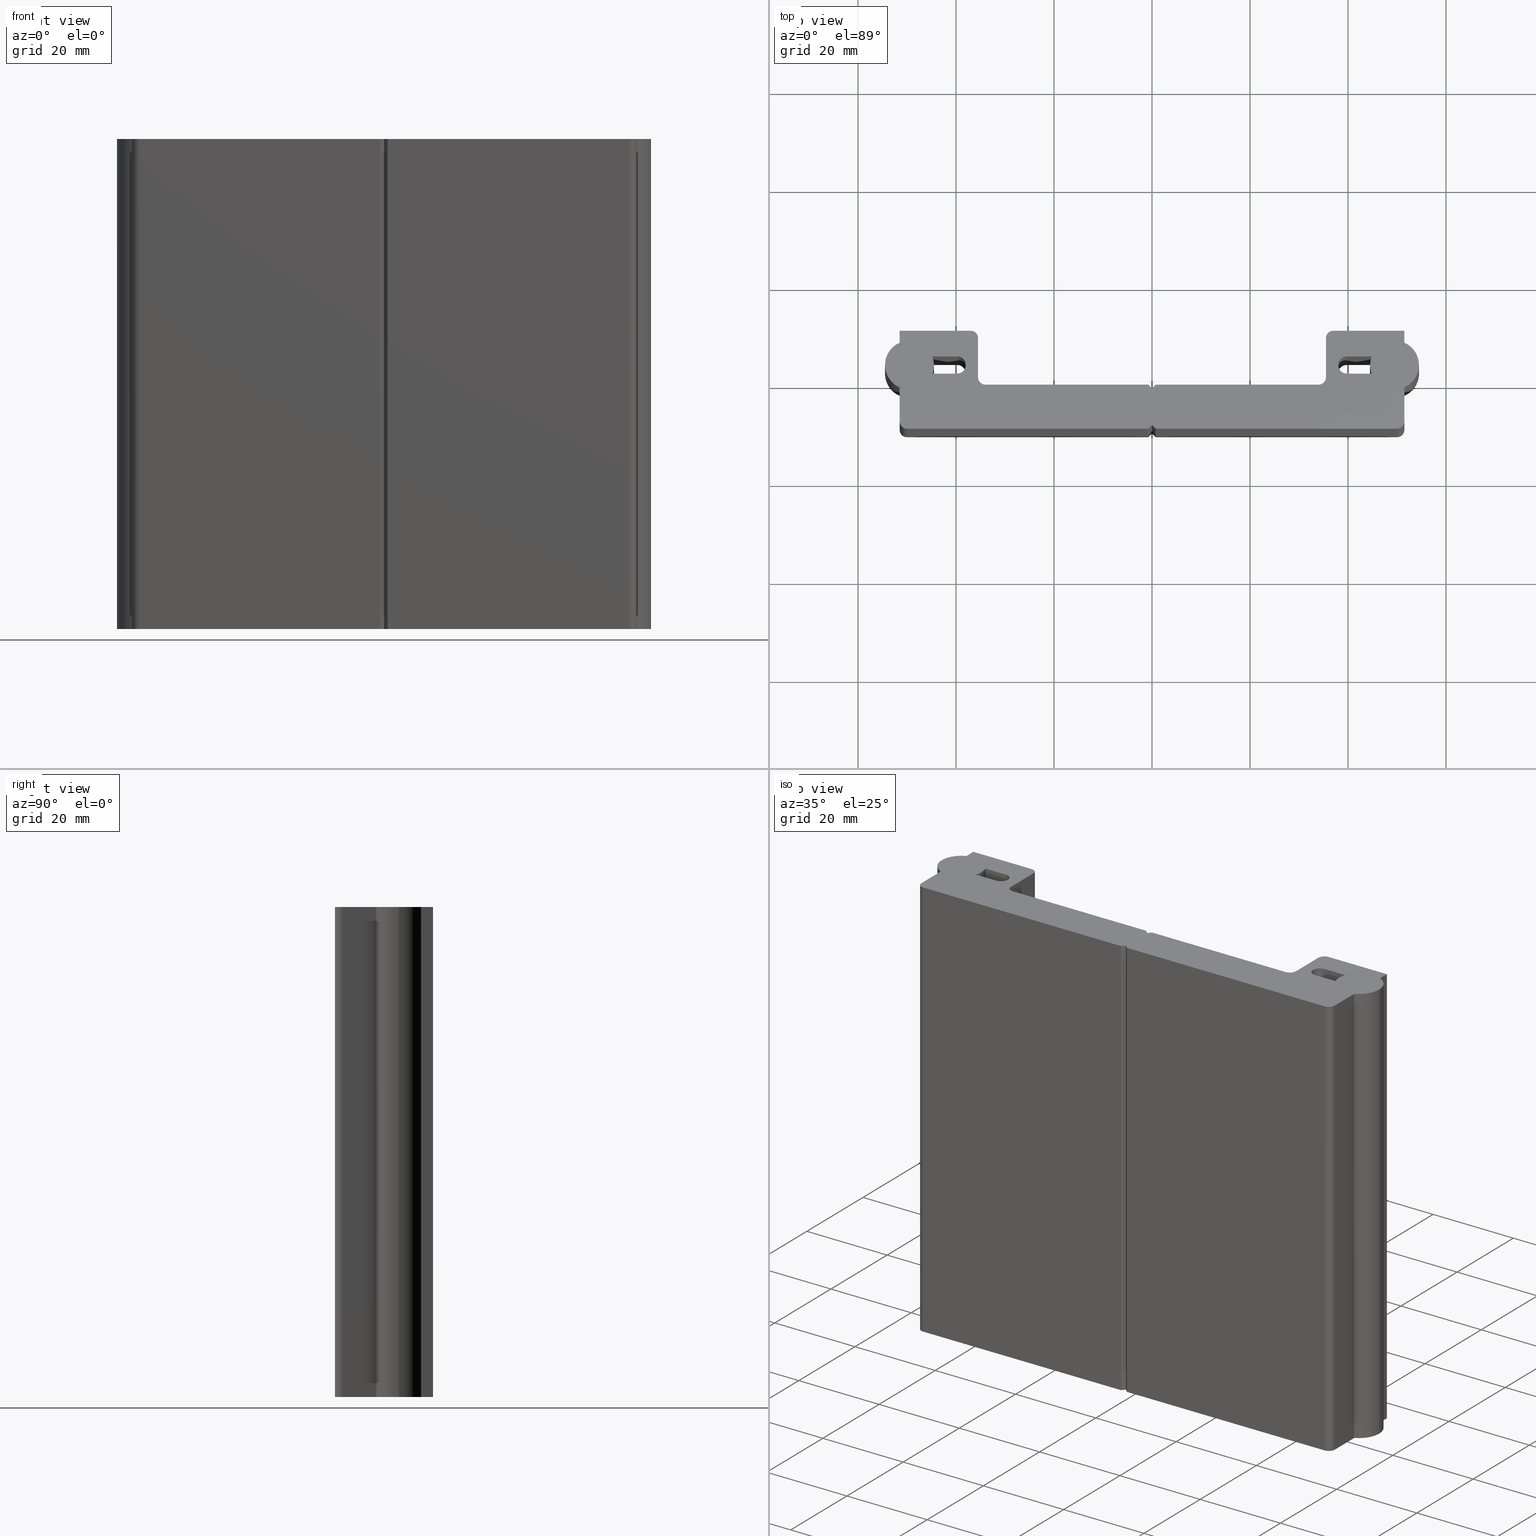
[diagram: canonical four-view strip — front | top / right | iso, engineering-drawing reading convention]
A machine part, canonical four-view strip (front | top / right | iso — engineering-drawing reading convention). The complete STEP part file that produces these views, byte-faithful:
ISO-10303-21;
HEADER;
/* Generated by software containing ST-Developer
 * from STEP Tools, Inc. (www.steptools.com) 
 */

FILE_DESCRIPTION(
/* description */ ('PROFILO GUIDA LINEARE GDX10'),
/* implementation_level */ '2;1');

FILE_NAME(
/* name */ 
'C:\\Users\\tecnico7\\Desktop\\NUOVI DISEGNI 3D\\F3DTM0000606.stp',
/* time_stamp */ '2022-12-12T09:51:14+01:00',
/* author */ ('tecnico7'),
/* organization */ (''),
/* preprocessor_version */ 'ST-DEVELOPER v18.1',
/* originating_system */ 'Autodesk Inventor 2022',
/* authorisation */ '');

FILE_SCHEMA (('AUTOMOTIVE_DESIGN { 1 0 10303 214 3 1 1 }'));
ENDSEC;

DATA;
#10=MECHANICAL_DESIGN_GEOMETRIC_PRESENTATION_REPRESENTATION('',(#27,#28),
#1255);
#11=ITEM_DEFINED_TRANSFORMATION($,$,#761,#826);
#12=ITEM_DEFINED_TRANSFORMATION($,$,#761,#827);
#13=ITEM_DEFINED_TRANSFORMATION($,$,#767,#828);
#14=(
REPRESENTATION_RELATIONSHIP($,$,#1270,#1269)
REPRESENTATION_RELATIONSHIP_WITH_TRANSFORMATION(#11)
SHAPE_REPRESENTATION_RELATIONSHIP()
);
#15=(
REPRESENTATION_RELATIONSHIP($,$,#1270,#1269)
REPRESENTATION_RELATIONSHIP_WITH_TRANSFORMATION(#12)
SHAPE_REPRESENTATION_RELATIONSHIP()
);
#16=(
REPRESENTATION_RELATIONSHIP($,$,#1271,#1269)
REPRESENTATION_RELATIONSHIP_WITH_TRANSFORMATION(#13)
SHAPE_REPRESENTATION_RELATIONSHIP()
);
#17=CONTEXT_DEPENDENT_SHAPE_REPRESENTATION(#14,#1266);
#18=CONTEXT_DEPENDENT_SHAPE_REPRESENTATION(#15,#1267);
#19=CONTEXT_DEPENDENT_SHAPE_REPRESENTATION(#16,#1268);
#20=NEXT_ASSEMBLY_USAGE_OCCURRENCE('3DSD000933:1','3DSD000933:1',
'3DSD000933:1',#1273,#1274,'3DSD000933:1');
#21=NEXT_ASSEMBLY_USAGE_OCCURRENCE('3DSD000933:2','3DSD000933:2',
'3DSD000933:2',#1273,#1274,'3DSD000933:2');
#22=NEXT_ASSEMBLY_USAGE_OCCURRENCE('3DSD000934:1','3DSD000934:1',
'3DSD000934:1',#1273,#1275,'3DSD000934:1');
#23=SHAPE_REPRESENTATION_RELATIONSHIP('SRR','None',#1270,#25);
#24=SHAPE_REPRESENTATION_RELATIONSHIP('SRR','None',#1271,#26);
#25=ADVANCED_BREP_SHAPE_REPRESENTATION('',(#29),#1253);
#26=ADVANCED_BREP_SHAPE_REPRESENTATION('',(#30),#1254);
#27=STYLED_ITEM('',(#1289),#29);
#28=STYLED_ITEM('',(#1290),#30);
#29=MANIFOLD_SOLID_BREP('Solido1',#714);
#30=MANIFOLD_SOLID_BREP('Solido1',#715);
#31=PLANE('',#765);
#32=PLANE('',#766);
#33=PLANE('',#768);
#34=PLANE('',#769);
#35=PLANE('',#773);
#36=PLANE('',#774);
#37=PLANE('',#790);
#38=PLANE('',#799);
#39=PLANE('',#800);
#40=PLANE('',#807);
#41=PLANE('',#809);
#42=PLANE('',#811);
#43=PLANE('',#814);
#44=PLANE('',#815);
#45=PLANE('',#816);
#46=PLANE('',#817);
#47=PLANE('',#818);
#48=PLANE('',#819);
#49=PLANE('',#820);
#50=PLANE('',#821);
#51=PLANE('',#822);
#52=PLANE('',#823);
#53=PLANE('',#824);
#54=PLANE('',#825);
#55=FACE_OUTER_BOUND('',#92,.T.);
#56=FACE_OUTER_BOUND('',#93,.T.);
#57=FACE_OUTER_BOUND('',#94,.T.);
#58=FACE_OUTER_BOUND('',#95,.T.);
#59=FACE_OUTER_BOUND('',#96,.T.);
#60=FACE_OUTER_BOUND('',#97,.T.);
#61=FACE_OUTER_BOUND('',#98,.T.);
#62=FACE_OUTER_BOUND('',#99,.T.);
#63=FACE_OUTER_BOUND('',#100,.T.);
#64=FACE_OUTER_BOUND('',#101,.T.);
#65=FACE_OUTER_BOUND('',#102,.T.);
#66=FACE_OUTER_BOUND('',#103,.T.);
#67=FACE_OUTER_BOUND('',#104,.T.);
#68=FACE_OUTER_BOUND('',#105,.T.);
#69=FACE_OUTER_BOUND('',#106,.T.);
#70=FACE_OUTER_BOUND('',#107,.T.);
#71=FACE_OUTER_BOUND('',#108,.T.);
#72=FACE_OUTER_BOUND('',#109,.T.);
#73=FACE_OUTER_BOUND('',#110,.T.);
#74=FACE_OUTER_BOUND('',#111,.T.);
#75=FACE_OUTER_BOUND('',#112,.T.);
#76=FACE_OUTER_BOUND('',#113,.T.);
#77=FACE_OUTER_BOUND('',#114,.T.);
#78=FACE_OUTER_BOUND('',#115,.T.);
#79=FACE_OUTER_BOUND('',#116,.T.);
#80=FACE_OUTER_BOUND('',#117,.T.);
#81=FACE_OUTER_BOUND('',#118,.T.);
#82=FACE_OUTER_BOUND('',#119,.T.);
#83=FACE_OUTER_BOUND('',#120,.T.);
#84=FACE_OUTER_BOUND('',#121,.T.);
#85=FACE_OUTER_BOUND('',#122,.T.);
#86=FACE_OUTER_BOUND('',#123,.T.);
#87=FACE_OUTER_BOUND('',#124,.T.);
#88=FACE_OUTER_BOUND('',#125,.T.);
#89=FACE_OUTER_BOUND('',#126,.T.);
#90=FACE_OUTER_BOUND('',#127,.T.);
#91=FACE_OUTER_BOUND('',#128,.T.);
#92=EDGE_LOOP('',(#466,#467,#468,#469));
#93=EDGE_LOOP('',(#470));
#94=EDGE_LOOP('',(#471));
#95=EDGE_LOOP('',(#472,#473,#474,#475));
#96=EDGE_LOOP('',(#476,#477,#478,#479));
#97=EDGE_LOOP('',(#480,#481,#482,#483));
#98=EDGE_LOOP('',(#484,#485,#486,#487));
#99=EDGE_LOOP('',(#488,#489,#490,#491));
#100=EDGE_LOOP('',(#492,#493,#494,#495));
#101=EDGE_LOOP('',(#496,#497,#498,#499));
#102=EDGE_LOOP('',(#500,#501,#502,#503));
#103=EDGE_LOOP('',(#504,#505,#506,#507));
#104=EDGE_LOOP('',(#508,#509,#510,#511));
#105=EDGE_LOOP('',(#512,#513,#514,#515,#516,#517,#518,#519,#520,#521,#522,
#523,#524,#525,#526,#527,#528,#529,#530,#531,#532,#533,#534,#535,#536,#537,
#538,#539,#540,#541,#542,#543));
#106=EDGE_LOOP('',(#544,#545,#546,#547));
#107=EDGE_LOOP('',(#548,#549,#550,#551));
#108=EDGE_LOOP('',(#552,#553,#554,#555,#556,#557,#558,#559,#560,#561,#562,
#563,#564,#565,#566,#567,#568,#569,#570,#571,#572,#573,#574,#575,#576,#577,
#578,#579,#580,#581,#582,#583));
#109=EDGE_LOOP('',(#584,#585,#586,#587));
#110=EDGE_LOOP('',(#588,#589,#590,#591));
#111=EDGE_LOOP('',(#592,#593,#594,#595));
#112=EDGE_LOOP('',(#596,#597,#598,#599));
#113=EDGE_LOOP('',(#600,#601,#602,#603));
#114=EDGE_LOOP('',(#604,#605,#606,#607));
#115=EDGE_LOOP('',(#608,#609,#610,#611));
#116=EDGE_LOOP('',(#612,#613,#614,#615));
#117=EDGE_LOOP('',(#616,#617,#618,#619));
#118=EDGE_LOOP('',(#620,#621,#622,#623));
#119=EDGE_LOOP('',(#624,#625,#626,#627));
#120=EDGE_LOOP('',(#628,#629,#630,#631));
#121=EDGE_LOOP('',(#632,#633,#634,#635));
#122=EDGE_LOOP('',(#636,#637,#638,#639));
#123=EDGE_LOOP('',(#640,#641,#642,#643));
#124=EDGE_LOOP('',(#644,#645,#646,#647));
#125=EDGE_LOOP('',(#648,#649,#650,#651));
#126=EDGE_LOOP('',(#652,#653,#654,#655));
#127=EDGE_LOOP('',(#656,#657,#658,#659));
#128=EDGE_LOOP('',(#660,#661,#662,#663));
#129=LINE('',#1046,#202);
#130=LINE('',#1054,#203);
#131=LINE('',#1056,#204);
#132=LINE('',#1058,#205);
#133=LINE('',#1059,#206);
#134=LINE('',#1063,#207);
#135=LINE('',#1065,#208);
#136=LINE('',#1067,#209);
#137=LINE('',#1068,#210);
#138=LINE('',#1075,#211);
#139=LINE('',#1077,#212);
#140=LINE('',#1079,#213);
#141=LINE('',#1080,#214);
#142=LINE('',#1084,#215);
#143=LINE('',#1086,#216);
#144=LINE('',#1088,#217);
#145=LINE('',#1089,#218);
#146=LINE('',#1097,#219);
#147=LINE('',#1103,#220);
#148=LINE('',#1109,#221);
#149=LINE('',#1115,#222);
#150=LINE('',#1119,#223);
#151=LINE('',#1121,#224);
#152=LINE('',#1125,#225);
#153=LINE('',#1129,#226);
#154=LINE('',#1131,#227);
#155=LINE('',#1133,#228);
#156=LINE('',#1135,#229);
#157=LINE('',#1139,#230);
#158=LINE('',#1143,#231);
#159=LINE('',#1144,#232);
#160=LINE('',#1146,#233);
#161=LINE('',#1150,#234);
#162=LINE('',#1152,#235);
#163=LINE('',#1154,#236);
#164=LINE('',#1156,#237);
#165=LINE('',#1159,#238);
#166=LINE('',#1162,#239);
#167=LINE('',#1165,#240);
#168=LINE('',#1168,#241);
#169=LINE('',#1169,#242);
#170=LINE('',#1172,#243);
#171=LINE('',#1176,#244);
#172=LINE('',#1178,#245);
#173=LINE('',#1180,#246);
#174=LINE('',#1182,#247);
#175=LINE('',#1185,#248);
#176=LINE('',#1187,#249);
#177=LINE('',#1189,#250);
#178=LINE('',#1193,#251);
#179=LINE('',#1197,#252);
#180=LINE('',#1199,#253);
#181=LINE('',#1201,#254);
#182=LINE('',#1203,#255);
#183=LINE('',#1206,#256);
#184=LINE('',#1207,#257);
#185=LINE('',#1209,#258);
#186=LINE('',#1210,#259);
#187=LINE('',#1212,#260);
#188=LINE('',#1214,#261);
#189=LINE('',#1215,#262);
#190=LINE('',#1218,#263);
#191=LINE('',#1219,#264);
#192=LINE('',#1221,#265);
#193=LINE('',#1223,#266);
#194=LINE('',#1225,#267);
#195=LINE('',#1227,#268);
#196=LINE('',#1229,#269);
#197=LINE('',#1231,#270);
#198=LINE('',#1233,#271);
#199=LINE('',#1234,#272);
#200=LINE('',#1240,#273);
#201=LINE('',#1243,#274);
#202=VECTOR('',#837,5.);
#203=VECTOR('',#848,10.);
#204=VECTOR('',#849,10.);
#205=VECTOR('',#850,10.);
#206=VECTOR('',#851,10.);
#207=VECTOR('',#854,10.);
#208=VECTOR('',#855,10.);
#209=VECTOR('',#856,10.);
#210=VECTOR('',#857,10.);
#211=VECTOR('',#866,10.);
#212=VECTOR('',#867,10.);
#213=VECTOR('',#868,10.);
#214=VECTOR('',#869,10.);
#215=VECTOR('',#872,10.);
#216=VECTOR('',#873,10.);
#217=VECTOR('',#874,10.);
#218=VECTOR('',#875,10.);
#219=VECTOR('',#886,10.);
#220=VECTOR('',#893,10.);
#221=VECTOR('',#900,10.);
#222=VECTOR('',#907,10.);
#223=VECTOR('',#912,10.);
#224=VECTOR('',#913,10.);
#225=VECTOR('',#916,10.);
#226=VECTOR('',#919,10.);
#227=VECTOR('',#920,10.);
#228=VECTOR('',#921,10.);
#229=VECTOR('',#922,10.);
#230=VECTOR('',#925,10.);
#231=VECTOR('',#928,10.);
#232=VECTOR('',#929,10.);
#233=VECTOR('',#930,10.);
#234=VECTOR('',#933,10.);
#235=VECTOR('',#934,10.);
#236=VECTOR('',#935,10.);
#237=VECTOR('',#936,10.);
#238=VECTOR('',#939,10.);
#239=VECTOR('',#942,10.);
#240=VECTOR('',#945,10.);
#241=VECTOR('',#948,10.);
#242=VECTOR('',#949,10.);
#243=VECTOR('',#952,10.);
#244=VECTOR('',#955,10.);
#245=VECTOR('',#956,10.);
#246=VECTOR('',#957,10.);
#247=VECTOR('',#958,10.);
#248=VECTOR('',#961,10.);
#249=VECTOR('',#962,10.);
#250=VECTOR('',#963,10.);
#251=VECTOR('',#966,10.);
#252=VECTOR('',#969,10.);
#253=VECTOR('',#970,10.);
#254=VECTOR('',#971,10.);
#255=VECTOR('',#972,10.);
#256=VECTOR('',#975,10.);
#257=VECTOR('',#976,10.);
#258=VECTOR('',#979,10.);
#259=VECTOR('',#980,10.);
#260=VECTOR('',#983,10.);
#261=VECTOR('',#986,10.);
#262=VECTOR('',#987,10.);
#263=VECTOR('',#992,10.);
#264=VECTOR('',#993,10.);
#265=VECTOR('',#996,10.);
#266=VECTOR('',#999,10.);
#267=VECTOR('',#1002,10.);
#268=VECTOR('',#1005,10.);
#269=VECTOR('',#1008,10.);
#270=VECTOR('',#1011,10.);
#271=VECTOR('',#1014,10.);
#272=VECTOR('',#1015,10.);
#273=VECTOR('',#1026,10.);
#274=VECTOR('',#1031,10.);
#275=CIRCLE('',#763,5.);
#276=CIRCLE('',#764,5.);
#277=CIRCLE('',#771,1.75);
#278=CIRCLE('',#772,1.75);
#279=CIRCLE('',#776,1.75);
#280=CIRCLE('',#777,1.75);
#281=CIRCLE('',#779,5.);
#282=CIRCLE('',#780,5.);
#283=CIRCLE('',#782,5.);
#284=CIRCLE('',#783,5.);
#285=CIRCLE('',#785,5.);
#286=CIRCLE('',#786,5.);
#287=CIRCLE('',#788,5.);
#288=CIRCLE('',#789,5.);
#289=CIRCLE('',#791,1.5);
#290=CIRCLE('',#792,1.5);
#291=CIRCLE('',#793,1.5);
#292=CIRCLE('',#794,1.5);
#293=CIRCLE('',#795,1.5);
#294=CIRCLE('',#796,1.5);
#295=CIRCLE('',#798,1.5);
#296=CIRCLE('',#801,1.5);
#297=CIRCLE('',#802,1.5);
#298=CIRCLE('',#803,1.5);
#299=CIRCLE('',#804,1.5);
#300=CIRCLE('',#805,1.5);
#301=VERTEX_POINT('',#1043);
#302=VERTEX_POINT('',#1045);
#303=VERTEX_POINT('',#1052);
#304=VERTEX_POINT('',#1053);
#305=VERTEX_POINT('',#1055);
#306=VERTEX_POINT('',#1057);
#307=VERTEX_POINT('',#1061);
#308=VERTEX_POINT('',#1062);
#309=VERTEX_POINT('',#1064);
#310=VERTEX_POINT('',#1066);
#311=VERTEX_POINT('',#1073);
#312=VERTEX_POINT('',#1074);
#313=VERTEX_POINT('',#1076);
#314=VERTEX_POINT('',#1078);
#315=VERTEX_POINT('',#1082);
#316=VERTEX_POINT('',#1083);
#317=VERTEX_POINT('',#1085);
#318=VERTEX_POINT('',#1087);
#319=VERTEX_POINT('',#1094);
#320=VERTEX_POINT('',#1096);
#321=VERTEX_POINT('',#1100);
#322=VERTEX_POINT('',#1102);
#323=VERTEX_POINT('',#1106);
#324=VERTEX_POINT('',#1108);
#325=VERTEX_POINT('',#1112);
#326=VERTEX_POINT('',#1114);
#327=VERTEX_POINT('',#1118);
#328=VERTEX_POINT('',#1120);
#329=VERTEX_POINT('',#1122);
#330=VERTEX_POINT('',#1124);
#331=VERTEX_POINT('',#1126);
#332=VERTEX_POINT('',#1128);
#333=VERTEX_POINT('',#1130);
#334=VERTEX_POINT('',#1132);
#335=VERTEX_POINT('',#1134);
#336=VERTEX_POINT('',#1136);
#337=VERTEX_POINT('',#1138);
#338=VERTEX_POINT('',#1140);
#339=VERTEX_POINT('',#1142);
#340=VERTEX_POINT('',#1145);
#341=VERTEX_POINT('',#1147);
#342=VERTEX_POINT('',#1149);
#343=VERTEX_POINT('',#1151);
#344=VERTEX_POINT('',#1153);
#345=VERTEX_POINT('',#1155);
#346=VERTEX_POINT('',#1157);
#347=VERTEX_POINT('',#1161);
#348=VERTEX_POINT('',#1163);
#349=VERTEX_POINT('',#1167);
#350=VERTEX_POINT('',#1171);
#351=VERTEX_POINT('',#1173);
#352=VERTEX_POINT('',#1175);
#353=VERTEX_POINT('',#1177);
#354=VERTEX_POINT('',#1179);
#355=VERTEX_POINT('',#1181);
#356=VERTEX_POINT('',#1183);
#357=VERTEX_POINT('',#1186);
#358=VERTEX_POINT('',#1188);
#359=VERTEX_POINT('',#1190);
#360=VERTEX_POINT('',#1192);
#361=VERTEX_POINT('',#1194);
#362=VERTEX_POINT('',#1196);
#363=VERTEX_POINT('',#1198);
#364=VERTEX_POINT('',#1200);
#365=VERTEX_POINT('',#1202);
#366=VERTEX_POINT('',#1205);
#367=EDGE_CURVE('',#301,#301,#275,.T.);
#368=EDGE_CURVE('',#301,#302,#129,.T.);
#369=EDGE_CURVE('',#302,#302,#276,.T.);
#370=EDGE_CURVE('',#303,#304,#130,.T.);
#371=EDGE_CURVE('',#305,#303,#131,.T.);
#372=EDGE_CURVE('',#306,#305,#132,.T.);
#373=EDGE_CURVE('',#304,#306,#133,.T.);
#374=EDGE_CURVE('',#307,#308,#134,.T.);
#375=EDGE_CURVE('',#309,#307,#135,.T.);
#376=EDGE_CURVE('',#310,#309,#136,.T.);
#377=EDGE_CURVE('',#310,#308,#137,.T.);
#378=EDGE_CURVE('',#308,#303,#277,.T.);
#379=EDGE_CURVE('',#305,#310,#278,.T.);
#380=EDGE_CURVE('',#311,#312,#138,.T.);
#381=EDGE_CURVE('',#313,#311,#139,.T.);
#382=EDGE_CURVE('',#314,#313,#140,.T.);
#383=EDGE_CURVE('',#312,#314,#141,.T.);
#384=EDGE_CURVE('',#315,#316,#142,.T.);
#385=EDGE_CURVE('',#317,#315,#143,.T.);
#386=EDGE_CURVE('',#318,#317,#144,.T.);
#387=EDGE_CURVE('',#318,#316,#145,.T.);
#388=EDGE_CURVE('',#316,#311,#279,.T.);
#389=EDGE_CURVE('',#313,#318,#280,.T.);
#390=EDGE_CURVE('',#319,#306,#281,.T.);
#391=EDGE_CURVE('',#320,#319,#146,.T.);
#392=EDGE_CURVE('',#304,#320,#282,.T.);
#393=EDGE_CURVE('',#321,#307,#283,.T.);
#394=EDGE_CURVE('',#322,#321,#147,.T.);
#395=EDGE_CURVE('',#309,#322,#284,.T.);
#396=EDGE_CURVE('',#323,#314,#285,.T.);
#397=EDGE_CURVE('',#324,#323,#148,.T.);
#398=EDGE_CURVE('',#312,#324,#286,.T.);
#399=EDGE_CURVE('',#325,#315,#287,.T.);
#400=EDGE_CURVE('',#326,#325,#149,.T.);
#401=EDGE_CURVE('',#317,#326,#288,.T.);
#402=EDGE_CURVE('',#320,#327,#150,.T.);
#403=EDGE_CURVE('',#327,#328,#151,.T.);
#404=EDGE_CURVE('',#329,#328,#289,.T.);
#405=EDGE_CURVE('',#329,#330,#152,.T.);
#406=EDGE_CURVE('',#331,#330,#290,.T.);
#407=EDGE_CURVE('',#331,#332,#153,.T.);
#408=EDGE_CURVE('',#332,#333,#154,.T.);
#409=EDGE_CURVE('',#333,#334,#155,.T.);
#410=EDGE_CURVE('',#334,#335,#156,.T.);
#411=EDGE_CURVE('',#336,#335,#291,.T.);
#412=EDGE_CURVE('',#336,#337,#157,.T.);
#413=EDGE_CURVE('',#338,#337,#292,.T.);
#414=EDGE_CURVE('',#338,#339,#158,.T.);
#415=EDGE_CURVE('',#339,#325,#159,.T.);
#416=EDGE_CURVE('',#324,#340,#160,.T.);
#417=EDGE_CURVE('',#341,#340,#293,.T.);
#418=EDGE_CURVE('',#341,#342,#161,.T.);
#419=EDGE_CURVE('',#342,#343,#162,.T.);
#420=EDGE_CURVE('',#343,#344,#163,.T.);
#421=EDGE_CURVE('',#344,#345,#164,.T.);
#422=EDGE_CURVE('',#346,#345,#294,.T.);
#423=EDGE_CURVE('',#346,#321,#165,.T.);
#424=EDGE_CURVE('',#328,#347,#166,.T.);
#425=EDGE_CURVE('',#347,#348,#295,.T.);
#426=EDGE_CURVE('',#348,#329,#167,.T.);
#427=EDGE_CURVE('',#349,#348,#168,.T.);
#428=EDGE_CURVE('',#330,#349,#169,.T.);
#429=EDGE_CURVE('',#322,#350,#170,.T.);
#430=EDGE_CURVE('',#351,#350,#296,.T.);
#431=EDGE_CURVE('',#351,#352,#171,.T.);
#432=EDGE_CURVE('',#352,#353,#172,.T.);
#433=EDGE_CURVE('',#353,#354,#173,.T.);
#434=EDGE_CURVE('',#354,#355,#174,.T.);
#435=EDGE_CURVE('',#356,#355,#297,.T.);
#436=EDGE_CURVE('',#356,#323,#175,.T.);
#437=EDGE_CURVE('',#326,#357,#176,.T.);
#438=EDGE_CURVE('',#357,#358,#177,.T.);
#439=EDGE_CURVE('',#359,#358,#298,.T.);
#440=EDGE_CURVE('',#359,#360,#178,.T.);
#441=EDGE_CURVE('',#361,#360,#299,.T.);
#442=EDGE_CURVE('',#361,#362,#179,.T.);
#443=EDGE_CURVE('',#362,#363,#180,.T.);
#444=EDGE_CURVE('',#363,#364,#181,.T.);
#445=EDGE_CURVE('',#364,#365,#182,.T.);
#446=EDGE_CURVE('',#349,#365,#300,.T.);
#447=EDGE_CURVE('',#347,#366,#183,.T.);
#448=EDGE_CURVE('',#366,#319,#184,.T.);
#449=EDGE_CURVE('',#358,#338,#185,.T.);
#450=EDGE_CURVE('',#337,#359,#186,.T.);
#451=EDGE_CURVE('',#360,#336,#187,.T.);
#452=EDGE_CURVE('',#355,#341,#188,.T.);
#453=EDGE_CURVE('',#340,#356,#189,.T.);
#454=EDGE_CURVE('',#350,#346,#190,.T.);
#455=EDGE_CURVE('',#345,#351,#191,.T.);
#456=EDGE_CURVE('',#344,#352,#192,.T.);
#457=EDGE_CURVE('',#335,#361,#193,.T.);
#458=EDGE_CURVE('',#365,#331,#194,.T.);
#459=EDGE_CURVE('',#364,#332,#195,.T.);
#460=EDGE_CURVE('',#363,#333,#196,.T.);
#461=EDGE_CURVE('',#334,#362,#197,.T.);
#462=EDGE_CURVE('',#354,#342,#198,.T.);
#463=EDGE_CURVE('',#353,#343,#199,.T.);
#464=EDGE_CURVE('',#339,#357,#200,.T.);
#465=EDGE_CURVE('',#327,#366,#201,.T.);
#466=ORIENTED_EDGE('',*,*,#367,.F.);
#467=ORIENTED_EDGE('',*,*,#368,.T.);
#468=ORIENTED_EDGE('',*,*,#369,.F.);
#469=ORIENTED_EDGE('',*,*,#368,.F.);
#470=ORIENTED_EDGE('',*,*,#367,.T.);
#471=ORIENTED_EDGE('',*,*,#369,.T.);
#472=ORIENTED_EDGE('',*,*,#370,.F.);
#473=ORIENTED_EDGE('',*,*,#371,.F.);
#474=ORIENTED_EDGE('',*,*,#372,.F.);
#475=ORIENTED_EDGE('',*,*,#373,.F.);
#476=ORIENTED_EDGE('',*,*,#374,.F.);
#477=ORIENTED_EDGE('',*,*,#375,.F.);
#478=ORIENTED_EDGE('',*,*,#376,.F.);
#479=ORIENTED_EDGE('',*,*,#377,.T.);
#480=ORIENTED_EDGE('',*,*,#378,.F.);
#481=ORIENTED_EDGE('',*,*,#377,.F.);
#482=ORIENTED_EDGE('',*,*,#379,.F.);
#483=ORIENTED_EDGE('',*,*,#371,.T.);
#484=ORIENTED_EDGE('',*,*,#380,.F.);
#485=ORIENTED_EDGE('',*,*,#381,.F.);
#486=ORIENTED_EDGE('',*,*,#382,.F.);
#487=ORIENTED_EDGE('',*,*,#383,.F.);
#488=ORIENTED_EDGE('',*,*,#384,.F.);
#489=ORIENTED_EDGE('',*,*,#385,.F.);
#490=ORIENTED_EDGE('',*,*,#386,.F.);
#491=ORIENTED_EDGE('',*,*,#387,.T.);
#492=ORIENTED_EDGE('',*,*,#388,.F.);
#493=ORIENTED_EDGE('',*,*,#387,.F.);
#494=ORIENTED_EDGE('',*,*,#389,.F.);
#495=ORIENTED_EDGE('',*,*,#381,.T.);
#496=ORIENTED_EDGE('',*,*,#373,.T.);
#497=ORIENTED_EDGE('',*,*,#390,.F.);
#498=ORIENTED_EDGE('',*,*,#391,.F.);
#499=ORIENTED_EDGE('',*,*,#392,.F.);
#500=ORIENTED_EDGE('',*,*,#375,.T.);
#501=ORIENTED_EDGE('',*,*,#393,.F.);
#502=ORIENTED_EDGE('',*,*,#394,.F.);
#503=ORIENTED_EDGE('',*,*,#395,.F.);
#504=ORIENTED_EDGE('',*,*,#383,.T.);
#505=ORIENTED_EDGE('',*,*,#396,.F.);
#506=ORIENTED_EDGE('',*,*,#397,.F.);
#507=ORIENTED_EDGE('',*,*,#398,.F.);
#508=ORIENTED_EDGE('',*,*,#385,.T.);
#509=ORIENTED_EDGE('',*,*,#399,.F.);
#510=ORIENTED_EDGE('',*,*,#400,.F.);
#511=ORIENTED_EDGE('',*,*,#401,.F.);
#512=ORIENTED_EDGE('',*,*,#374,.T.);
#513=ORIENTED_EDGE('',*,*,#378,.T.);
#514=ORIENTED_EDGE('',*,*,#370,.T.);
#515=ORIENTED_EDGE('',*,*,#392,.T.);
#516=ORIENTED_EDGE('',*,*,#402,.T.);
#517=ORIENTED_EDGE('',*,*,#403,.T.);
#518=ORIENTED_EDGE('',*,*,#404,.F.);
#519=ORIENTED_EDGE('',*,*,#405,.T.);
#520=ORIENTED_EDGE('',*,*,#406,.F.);
#521=ORIENTED_EDGE('',*,*,#407,.T.);
#522=ORIENTED_EDGE('',*,*,#408,.T.);
#523=ORIENTED_EDGE('',*,*,#409,.T.);
#524=ORIENTED_EDGE('',*,*,#410,.T.);
#525=ORIENTED_EDGE('',*,*,#411,.F.);
#526=ORIENTED_EDGE('',*,*,#412,.T.);
#527=ORIENTED_EDGE('',*,*,#413,.F.);
#528=ORIENTED_EDGE('',*,*,#414,.T.);
#529=ORIENTED_EDGE('',*,*,#415,.T.);
#530=ORIENTED_EDGE('',*,*,#399,.T.);
#531=ORIENTED_EDGE('',*,*,#384,.T.);
#532=ORIENTED_EDGE('',*,*,#388,.T.);
#533=ORIENTED_EDGE('',*,*,#380,.T.);
#534=ORIENTED_EDGE('',*,*,#398,.T.);
#535=ORIENTED_EDGE('',*,*,#416,.T.);
#536=ORIENTED_EDGE('',*,*,#417,.F.);
#537=ORIENTED_EDGE('',*,*,#418,.T.);
#538=ORIENTED_EDGE('',*,*,#419,.T.);
#539=ORIENTED_EDGE('',*,*,#420,.T.);
#540=ORIENTED_EDGE('',*,*,#421,.T.);
#541=ORIENTED_EDGE('',*,*,#422,.F.);
#542=ORIENTED_EDGE('',*,*,#423,.T.);
#543=ORIENTED_EDGE('',*,*,#393,.T.);
#544=ORIENTED_EDGE('',*,*,#404,.T.);
#545=ORIENTED_EDGE('',*,*,#424,.T.);
#546=ORIENTED_EDGE('',*,*,#425,.T.);
#547=ORIENTED_EDGE('',*,*,#426,.T.);
#548=ORIENTED_EDGE('',*,*,#426,.F.);
#549=ORIENTED_EDGE('',*,*,#427,.F.);
#550=ORIENTED_EDGE('',*,*,#428,.F.);
#551=ORIENTED_EDGE('',*,*,#405,.F.);
#552=ORIENTED_EDGE('',*,*,#376,.T.);
#553=ORIENTED_EDGE('',*,*,#395,.T.);
#554=ORIENTED_EDGE('',*,*,#429,.T.);
#555=ORIENTED_EDGE('',*,*,#430,.F.);
#556=ORIENTED_EDGE('',*,*,#431,.T.);
#557=ORIENTED_EDGE('',*,*,#432,.T.);
#558=ORIENTED_EDGE('',*,*,#433,.T.);
#559=ORIENTED_EDGE('',*,*,#434,.T.);
#560=ORIENTED_EDGE('',*,*,#435,.F.);
#561=ORIENTED_EDGE('',*,*,#436,.T.);
#562=ORIENTED_EDGE('',*,*,#396,.T.);
#563=ORIENTED_EDGE('',*,*,#382,.T.);
#564=ORIENTED_EDGE('',*,*,#389,.T.);
#565=ORIENTED_EDGE('',*,*,#386,.T.);
#566=ORIENTED_EDGE('',*,*,#401,.T.);
#567=ORIENTED_EDGE('',*,*,#437,.T.);
#568=ORIENTED_EDGE('',*,*,#438,.T.);
#569=ORIENTED_EDGE('',*,*,#439,.F.);
#570=ORIENTED_EDGE('',*,*,#440,.T.);
#571=ORIENTED_EDGE('',*,*,#441,.F.);
#572=ORIENTED_EDGE('',*,*,#442,.T.);
#573=ORIENTED_EDGE('',*,*,#443,.T.);
#574=ORIENTED_EDGE('',*,*,#444,.T.);
#575=ORIENTED_EDGE('',*,*,#445,.T.);
#576=ORIENTED_EDGE('',*,*,#446,.F.);
#577=ORIENTED_EDGE('',*,*,#427,.T.);
#578=ORIENTED_EDGE('',*,*,#425,.F.);
#579=ORIENTED_EDGE('',*,*,#447,.T.);
#580=ORIENTED_EDGE('',*,*,#448,.T.);
#581=ORIENTED_EDGE('',*,*,#390,.T.);
#582=ORIENTED_EDGE('',*,*,#372,.T.);
#583=ORIENTED_EDGE('',*,*,#379,.T.);
#584=ORIENTED_EDGE('',*,*,#439,.T.);
#585=ORIENTED_EDGE('',*,*,#449,.T.);
#586=ORIENTED_EDGE('',*,*,#413,.T.);
#587=ORIENTED_EDGE('',*,*,#450,.T.);
#588=ORIENTED_EDGE('',*,*,#450,.F.);
#589=ORIENTED_EDGE('',*,*,#412,.F.);
#590=ORIENTED_EDGE('',*,*,#451,.F.);
#591=ORIENTED_EDGE('',*,*,#440,.F.);
#592=ORIENTED_EDGE('',*,*,#435,.T.);
#593=ORIENTED_EDGE('',*,*,#452,.T.);
#594=ORIENTED_EDGE('',*,*,#417,.T.);
#595=ORIENTED_EDGE('',*,*,#453,.T.);
#596=ORIENTED_EDGE('',*,*,#453,.F.);
#597=ORIENTED_EDGE('',*,*,#416,.F.);
#598=ORIENTED_EDGE('',*,*,#397,.T.);
#599=ORIENTED_EDGE('',*,*,#436,.F.);
#600=ORIENTED_EDGE('',*,*,#430,.T.);
#601=ORIENTED_EDGE('',*,*,#454,.T.);
#602=ORIENTED_EDGE('',*,*,#422,.T.);
#603=ORIENTED_EDGE('',*,*,#455,.T.);
#604=ORIENTED_EDGE('',*,*,#455,.F.);
#605=ORIENTED_EDGE('',*,*,#421,.F.);
#606=ORIENTED_EDGE('',*,*,#456,.T.);
#607=ORIENTED_EDGE('',*,*,#431,.F.);
#608=ORIENTED_EDGE('',*,*,#441,.T.);
#609=ORIENTED_EDGE('',*,*,#451,.T.);
#610=ORIENTED_EDGE('',*,*,#411,.T.);
#611=ORIENTED_EDGE('',*,*,#457,.T.);
#612=ORIENTED_EDGE('',*,*,#446,.T.);
#613=ORIENTED_EDGE('',*,*,#458,.T.);
#614=ORIENTED_EDGE('',*,*,#406,.T.);
#615=ORIENTED_EDGE('',*,*,#428,.T.);
#616=ORIENTED_EDGE('',*,*,#458,.F.);
#617=ORIENTED_EDGE('',*,*,#445,.F.);
#618=ORIENTED_EDGE('',*,*,#459,.T.);
#619=ORIENTED_EDGE('',*,*,#407,.F.);
#620=ORIENTED_EDGE('',*,*,#408,.F.);
#621=ORIENTED_EDGE('',*,*,#459,.F.);
#622=ORIENTED_EDGE('',*,*,#444,.F.);
#623=ORIENTED_EDGE('',*,*,#460,.T.);
#624=ORIENTED_EDGE('',*,*,#409,.F.);
#625=ORIENTED_EDGE('',*,*,#460,.F.);
#626=ORIENTED_EDGE('',*,*,#443,.F.);
#627=ORIENTED_EDGE('',*,*,#461,.F.);
#628=ORIENTED_EDGE('',*,*,#419,.F.);
#629=ORIENTED_EDGE('',*,*,#462,.F.);
#630=ORIENTED_EDGE('',*,*,#433,.F.);
#631=ORIENTED_EDGE('',*,*,#463,.T.);
#632=ORIENTED_EDGE('',*,*,#420,.F.);
#633=ORIENTED_EDGE('',*,*,#463,.F.);
#634=ORIENTED_EDGE('',*,*,#432,.F.);
#635=ORIENTED_EDGE('',*,*,#456,.F.);
#636=ORIENTED_EDGE('',*,*,#457,.F.);
#637=ORIENTED_EDGE('',*,*,#410,.F.);
#638=ORIENTED_EDGE('',*,*,#461,.T.);
#639=ORIENTED_EDGE('',*,*,#442,.F.);
#640=ORIENTED_EDGE('',*,*,#452,.F.);
#641=ORIENTED_EDGE('',*,*,#434,.F.);
#642=ORIENTED_EDGE('',*,*,#462,.T.);
#643=ORIENTED_EDGE('',*,*,#418,.F.);
#644=ORIENTED_EDGE('',*,*,#454,.F.);
#645=ORIENTED_EDGE('',*,*,#429,.F.);
#646=ORIENTED_EDGE('',*,*,#394,.T.);
#647=ORIENTED_EDGE('',*,*,#423,.F.);
#648=ORIENTED_EDGE('',*,*,#400,.T.);
#649=ORIENTED_EDGE('',*,*,#415,.F.);
#650=ORIENTED_EDGE('',*,*,#464,.T.);
#651=ORIENTED_EDGE('',*,*,#437,.F.);
#652=ORIENTED_EDGE('',*,*,#449,.F.);
#653=ORIENTED_EDGE('',*,*,#438,.F.);
#654=ORIENTED_EDGE('',*,*,#464,.F.);
#655=ORIENTED_EDGE('',*,*,#414,.F.);
#656=ORIENTED_EDGE('',*,*,#391,.T.);
#657=ORIENTED_EDGE('',*,*,#448,.F.);
#658=ORIENTED_EDGE('',*,*,#465,.F.);
#659=ORIENTED_EDGE('',*,*,#402,.F.);
#660=ORIENTED_EDGE('',*,*,#424,.F.);
#661=ORIENTED_EDGE('',*,*,#403,.F.);
#662=ORIENTED_EDGE('',*,*,#465,.T.);
#663=ORIENTED_EDGE('',*,*,#447,.F.);
#664=CYLINDRICAL_SURFACE('',#762,5.);
#665=CYLINDRICAL_SURFACE('',#770,1.75);
#666=CYLINDRICAL_SURFACE('',#775,1.75);
#667=CYLINDRICAL_SURFACE('',#778,5.);
#668=CYLINDRICAL_SURFACE('',#781,5.);
#669=CYLINDRICAL_SURFACE('',#784,5.);
#670=CYLINDRICAL_SURFACE('',#787,5.);
#671=CYLINDRICAL_SURFACE('',#797,1.5);
#672=CYLINDRICAL_SURFACE('',#806,1.5);
#673=CYLINDRICAL_SURFACE('',#808,1.5);
#674=CYLINDRICAL_SURFACE('',#810,1.5);
#675=CYLINDRICAL_SURFACE('',#812,1.5);
#676=CYLINDRICAL_SURFACE('',#813,1.5);
#677=ADVANCED_FACE('',(#55),#664,.T.);
#678=ADVANCED_FACE('',(#56),#31,.T.);
#679=ADVANCED_FACE('',(#57),#32,.F.);
#680=ADVANCED_FACE('',(#58),#33,.F.);
#681=ADVANCED_FACE('',(#59),#34,.F.);
#682=ADVANCED_FACE('',(#60),#665,.F.);
#683=ADVANCED_FACE('',(#61),#35,.F.);
#684=ADVANCED_FACE('',(#62),#36,.F.);
#685=ADVANCED_FACE('',(#63),#666,.F.);
#686=ADVANCED_FACE('',(#64),#667,.F.);
#687=ADVANCED_FACE('',(#65),#668,.F.);
#688=ADVANCED_FACE('',(#66),#669,.F.);
#689=ADVANCED_FACE('',(#67),#670,.F.);
#690=ADVANCED_FACE('',(#68),#37,.F.);
#691=ADVANCED_FACE('',(#69),#671,.T.);
#692=ADVANCED_FACE('',(#70),#38,.F.);
#693=ADVANCED_FACE('',(#71),#39,.T.);
#694=ADVANCED_FACE('',(#72),#672,.T.);
#695=ADVANCED_FACE('',(#73),#40,.F.);
#696=ADVANCED_FACE('',(#74),#673,.T.);
#697=ADVANCED_FACE('',(#75),#41,.T.);
#698=ADVANCED_FACE('',(#76),#674,.T.);
#699=ADVANCED_FACE('',(#77),#42,.T.);
#700=ADVANCED_FACE('',(#78),#675,.F.);
#701=ADVANCED_FACE('',(#79),#676,.F.);
#702=ADVANCED_FACE('',(#80),#43,.F.);
#703=ADVANCED_FACE('',(#81),#44,.F.);
#704=ADVANCED_FACE('',(#82),#45,.F.);
#705=ADVANCED_FACE('',(#83),#46,.F.);
#706=ADVANCED_FACE('',(#84),#47,.F.);
#707=ADVANCED_FACE('',(#85),#48,.F.);
#708=ADVANCED_FACE('',(#86),#49,.T.);
#709=ADVANCED_FACE('',(#87),#50,.T.);
#710=ADVANCED_FACE('',(#88),#51,.T.);
#711=ADVANCED_FACE('',(#89),#52,.T.);
#712=ADVANCED_FACE('',(#90),#53,.T.);
#713=ADVANCED_FACE('',(#91),#54,.T.);
#714=CLOSED_SHELL('',(#677,#678,#679));
#715=CLOSED_SHELL('',(#680,#681,#682,#683,#684,#685,#686,#687,#688,#689,
#690,#691,#692,#693,#694,#695,#696,#697,#698,#699,#700,#701,#702,#703,#704,
#705,#706,#707,#708,#709,#710,#711,#712,#713));
#716=DERIVED_UNIT_ELEMENT(#721,1.);
#717=DERIVED_UNIT_ELEMENT(#1257,-3.);
#718=DERIVED_UNIT_ELEMENT(#721,1.);
#719=DERIVED_UNIT_ELEMENT(#1257,-3.);
#720=DIMENSIONAL_EXPONENTS(1.,0.,0.,0.,0.,0.,0.);
#721=(
CONVERSION_BASED_UNIT('gram',#723)
MASS_UNIT()
NAMED_UNIT(#720)
);
#722=(
MASS_UNIT()
NAMED_UNIT(*)
SI_UNIT(.KILO.,.GRAM.)
);
#723=MASS_MEASURE_WITH_UNIT(MASS_MEASURE(0.001),#722);
#724=DERIVED_UNIT((#716,#717));
#725=DERIVED_UNIT((#718,#719));
#726=MEASURE_REPRESENTATION_ITEM('density measure',
POSITIVE_RATIO_MEASURE(7.87),#724);
#727=MEASURE_REPRESENTATION_ITEM('density measure',
POSITIVE_RATIO_MEASURE(2.71),#725);
#728=PROPERTY_DEFINITION_REPRESENTATION(#738,#732);
#729=PROPERTY_DEFINITION_REPRESENTATION(#739,#733);
#730=PROPERTY_DEFINITION_REPRESENTATION(#740,#734);
#731=PROPERTY_DEFINITION_REPRESENTATION(#741,#735);
#732=REPRESENTATION('material name',(#736),#1253);
#733=REPRESENTATION('density',(#726),#1253);
#734=REPRESENTATION('material name',(#737),#1254);
#735=REPRESENTATION('density',(#727),#1254);
#736=DESCRIPTIVE_REPRESENTATION_ITEM('Acciaio 1 C40','Acciaio 1 C40');
#737=DESCRIPTIVE_REPRESENTATION_ITEM('Alluminio 6061','Alluminio 6061');
#738=PROPERTY_DEFINITION('material property','material name',#1274);
#739=PROPERTY_DEFINITION('material property','density of part',#1274);
#740=PROPERTY_DEFINITION('material property','material name',#1275);
#741=PROPERTY_DEFINITION('material property','density of part',#1275);
#742=DATE_TIME_ROLE('creation_date');
#743=DATE_TIME_ROLE('creation_date');
#744=DATE_TIME_ROLE('creation_date');
#745=APPLIED_DATE_AND_TIME_ASSIGNMENT(#748,#742,(#1273));
#746=APPLIED_DATE_AND_TIME_ASSIGNMENT(#749,#743,(#1274));
#747=APPLIED_DATE_AND_TIME_ASSIGNMENT(#750,#744,(#1275));
#748=DATE_AND_TIME(#751,#754);
#749=DATE_AND_TIME(#752,#755);
#750=DATE_AND_TIME(#753,#756);
#751=CALENDAR_DATE(2013,19,2);
#752=CALENDAR_DATE(2013,19,2);
#753=CALENDAR_DATE(2013,19,2);
#754=LOCAL_TIME(0,0,0.,#757);
#755=LOCAL_TIME(0,0,0.,#758);
#756=LOCAL_TIME(0,0,0.,#759);
#757=COORDINATED_UNIVERSAL_TIME_OFFSET(0,0,.BEHIND.);
#758=COORDINATED_UNIVERSAL_TIME_OFFSET(0,0,.BEHIND.);
#759=COORDINATED_UNIVERSAL_TIME_OFFSET(0,0,.BEHIND.);
#760=AXIS2_PLACEMENT_3D('placement',#1040,#829,#830);
#761=AXIS2_PLACEMENT_3D('placement',#1041,#831,#832);
#762=AXIS2_PLACEMENT_3D('',#1042,#833,#834);
#763=AXIS2_PLACEMENT_3D('',#1044,#835,#836);
#764=AXIS2_PLACEMENT_3D('',#1047,#838,#839);
#765=AXIS2_PLACEMENT_3D('',#1048,#840,#841);
#766=AXIS2_PLACEMENT_3D('',#1049,#842,#843);
#767=AXIS2_PLACEMENT_3D('placement',#1050,#844,#845);
#768=AXIS2_PLACEMENT_3D('',#1051,#846,#847);
#769=AXIS2_PLACEMENT_3D('',#1060,#852,#853);
#770=AXIS2_PLACEMENT_3D('',#1069,#858,#859);
#771=AXIS2_PLACEMENT_3D('',#1070,#860,#861);
#772=AXIS2_PLACEMENT_3D('',#1071,#862,#863);
#773=AXIS2_PLACEMENT_3D('',#1072,#864,#865);
#774=AXIS2_PLACEMENT_3D('',#1081,#870,#871);
#775=AXIS2_PLACEMENT_3D('',#1090,#876,#877);
#776=AXIS2_PLACEMENT_3D('',#1091,#878,#879);
#777=AXIS2_PLACEMENT_3D('',#1092,#880,#881);
#778=AXIS2_PLACEMENT_3D('',#1093,#882,#883);
#779=AXIS2_PLACEMENT_3D('',#1095,#884,#885);
#780=AXIS2_PLACEMENT_3D('',#1098,#887,#888);
#781=AXIS2_PLACEMENT_3D('',#1099,#889,#890);
#782=AXIS2_PLACEMENT_3D('',#1101,#891,#892);
#783=AXIS2_PLACEMENT_3D('',#1104,#894,#895);
#784=AXIS2_PLACEMENT_3D('',#1105,#896,#897);
#785=AXIS2_PLACEMENT_3D('',#1107,#898,#899);
#786=AXIS2_PLACEMENT_3D('',#1110,#901,#902);
#787=AXIS2_PLACEMENT_3D('',#1111,#903,#904);
#788=AXIS2_PLACEMENT_3D('',#1113,#905,#906);
#789=AXIS2_PLACEMENT_3D('',#1116,#908,#909);
#790=AXIS2_PLACEMENT_3D('',#1117,#910,#911);
#791=AXIS2_PLACEMENT_3D('',#1123,#914,#915);
#792=AXIS2_PLACEMENT_3D('',#1127,#917,#918);
#793=AXIS2_PLACEMENT_3D('',#1137,#923,#924);
#794=AXIS2_PLACEMENT_3D('',#1141,#926,#927);
#795=AXIS2_PLACEMENT_3D('',#1148,#931,#932);
#796=AXIS2_PLACEMENT_3D('',#1158,#937,#938);
#797=AXIS2_PLACEMENT_3D('',#1160,#940,#941);
#798=AXIS2_PLACEMENT_3D('',#1164,#943,#944);
#799=AXIS2_PLACEMENT_3D('',#1166,#946,#947);
#800=AXIS2_PLACEMENT_3D('',#1170,#950,#951);
#801=AXIS2_PLACEMENT_3D('',#1174,#953,#954);
#802=AXIS2_PLACEMENT_3D('',#1184,#959,#960);
#803=AXIS2_PLACEMENT_3D('',#1191,#964,#965);
#804=AXIS2_PLACEMENT_3D('',#1195,#967,#968);
#805=AXIS2_PLACEMENT_3D('',#1204,#973,#974);
#806=AXIS2_PLACEMENT_3D('',#1208,#977,#978);
#807=AXIS2_PLACEMENT_3D('',#1211,#981,#982);
#808=AXIS2_PLACEMENT_3D('',#1213,#984,#985);
#809=AXIS2_PLACEMENT_3D('',#1216,#988,#989);
#810=AXIS2_PLACEMENT_3D('',#1217,#990,#991);
#811=AXIS2_PLACEMENT_3D('',#1220,#994,#995);
#812=AXIS2_PLACEMENT_3D('',#1222,#997,#998);
#813=AXIS2_PLACEMENT_3D('',#1224,#1000,#1001);
#814=AXIS2_PLACEMENT_3D('',#1226,#1003,#1004);
#815=AXIS2_PLACEMENT_3D('',#1228,#1006,#1007);
#816=AXIS2_PLACEMENT_3D('',#1230,#1009,#1010);
#817=AXIS2_PLACEMENT_3D('',#1232,#1012,#1013);
#818=AXIS2_PLACEMENT_3D('',#1235,#1016,#1017);
#819=AXIS2_PLACEMENT_3D('',#1236,#1018,#1019);
#820=AXIS2_PLACEMENT_3D('',#1237,#1020,#1021);
#821=AXIS2_PLACEMENT_3D('',#1238,#1022,#1023);
#822=AXIS2_PLACEMENT_3D('',#1239,#1024,#1025);
#823=AXIS2_PLACEMENT_3D('',#1241,#1027,#1028);
#824=AXIS2_PLACEMENT_3D('',#1242,#1029,#1030);
#825=AXIS2_PLACEMENT_3D('',#1244,#1032,#1033);
#826=AXIS2_PLACEMENT_3D('',#1245,#1034,#1035);
#827=AXIS2_PLACEMENT_3D('',#1246,#1036,#1037);
#828=AXIS2_PLACEMENT_3D('',#1247,#1038,#1039);
#829=DIRECTION('axis',(0.,0.,1.));
#830=DIRECTION('refdir',(1.,0.,0.));
#831=DIRECTION('axis',(0.,0.,1.));
#832=DIRECTION('refdir',(1.,0.,0.));
#833=DIRECTION('center_axis',(0.,0.,1.));
#834=DIRECTION('ref_axis',(-1.,0.,0.));
#835=DIRECTION('center_axis',(0.,0.,1.));
#836=DIRECTION('ref_axis',(-1.,0.,0.));
#837=DIRECTION('',(0.,0.,-1.));
#838=DIRECTION('center_axis',(0.,0.,-1.));
#839=DIRECTION('ref_axis',(-1.,0.,0.));
#840=DIRECTION('center_axis',(0.,0.,1.));
#841=DIRECTION('ref_axis',(1.,0.,0.));
#842=DIRECTION('center_axis',(0.,0.,1.));
#843=DIRECTION('ref_axis',(1.,0.,0.));
#844=DIRECTION('axis',(0.,0.,1.));
#845=DIRECTION('refdir',(1.,0.,0.));
#846=DIRECTION('center_axis',(5.47852304786845E-16,1.,0.));
#847=DIRECTION('ref_axis',(1.,-5.47852304786845E-16,0.));
#848=DIRECTION('',(-1.,5.47852304786845E-16,0.));
#849=DIRECTION('',(0.,0.,-1.));
#850=DIRECTION('',(1.,-5.47852304786845E-16,0.));
#851=DIRECTION('',(0.,0.,1.));
#852=DIRECTION('center_axis',(-5.47852304786845E-16,-1.,0.));
#853=DIRECTION('ref_axis',(-1.,5.47852304786845E-16,0.));
#854=DIRECTION('',(1.,-5.47852304786845E-16,0.));
#855=DIRECTION('',(0.,0.,-1.));
#856=DIRECTION('',(-1.,5.47852304786845E-16,0.));
#857=DIRECTION('',(0.,0.,-1.));
#858=DIRECTION('center_axis',(0.,0.,-1.));
#859=DIRECTION('ref_axis',(0.,-1.,0.));
#860=DIRECTION('center_axis',(0.,0.,1.));
#861=DIRECTION('ref_axis',(0.,-1.,0.));
#862=DIRECTION('center_axis',(0.,0.,-1.));
#863=DIRECTION('ref_axis',(0.,-1.,0.));
#864=DIRECTION('center_axis',(-5.47852304786845E-16,-1.,0.));
#865=DIRECTION('ref_axis',(-1.,5.47852304786845E-16,0.));
#866=DIRECTION('',(1.,-5.47852304786845E-16,0.));
#867=DIRECTION('',(0.,0.,-1.));
#868=DIRECTION('',(-1.,5.47852304786845E-16,0.));
#869=DIRECTION('',(0.,0.,1.));
#870=DIRECTION('center_axis',(5.47852304786845E-16,1.,0.));
#871=DIRECTION('ref_axis',(1.,-5.47852304786845E-16,0.));
#872=DIRECTION('',(-1.,5.47852304786845E-16,0.));
#873=DIRECTION('',(0.,0.,-1.));
#874=DIRECTION('',(1.,-5.47852304786845E-16,0.));
#875=DIRECTION('',(0.,0.,-1.));
#876=DIRECTION('center_axis',(0.,0.,-1.));
#877=DIRECTION('ref_axis',(0.,1.,0.));
#878=DIRECTION('center_axis',(0.,0.,1.));
#879=DIRECTION('ref_axis',(0.,1.,0.));
#880=DIRECTION('center_axis',(0.,0.,-1.));
#881=DIRECTION('ref_axis',(0.,1.,0.));
#882=DIRECTION('center_axis',(0.,0.,-1.));
#883=DIRECTION('ref_axis',(-1.,0.,0.));
#884=DIRECTION('center_axis',(0.,0.,-1.));
#885=DIRECTION('ref_axis',(-1.,0.,0.));
#886=DIRECTION('',(0.,0.,1.));
#887=DIRECTION('center_axis',(0.,0.,1.));
#888=DIRECTION('ref_axis',(-1.,0.,0.));
#889=DIRECTION('center_axis',(0.,0.,-1.));
#890=DIRECTION('ref_axis',(-1.,0.,0.));
#891=DIRECTION('center_axis',(0.,0.,1.));
#892=DIRECTION('ref_axis',(-1.,0.,0.));
#893=DIRECTION('',(0.,0.,-1.));
#894=DIRECTION('center_axis',(0.,0.,-1.));
#895=DIRECTION('ref_axis',(-1.,0.,0.));
#896=DIRECTION('center_axis',(0.,0.,-1.));
#897=DIRECTION('ref_axis',(-1.,0.,0.));
#898=DIRECTION('center_axis',(0.,0.,-1.));
#899=DIRECTION('ref_axis',(-1.,0.,0.));
#900=DIRECTION('',(0.,0.,1.));
#901=DIRECTION('center_axis',(0.,0.,1.));
#902=DIRECTION('ref_axis',(-1.,0.,0.));
#903=DIRECTION('center_axis',(0.,0.,-1.));
#904=DIRECTION('ref_axis',(-1.,0.,0.));
#905=DIRECTION('center_axis',(0.,0.,1.));
#906=DIRECTION('ref_axis',(-1.,0.,0.));
#907=DIRECTION('',(0.,0.,-1.));
#908=DIRECTION('center_axis',(0.,0.,-1.));
#909=DIRECTION('ref_axis',(-1.,0.,0.));
#910=DIRECTION('center_axis',(0.,0.,1.));
#911=DIRECTION('ref_axis',(1.,0.,0.));
#912=DIRECTION('',(0.,1.,0.));
#913=DIRECTION('',(1.,0.,0.));
#914=DIRECTION('center_axis',(0.,0.,1.));
#915=DIRECTION('ref_axis',(0.707106781186549,0.707106781186546,0.));
#916=DIRECTION('',(-4.03717463500057E-16,-1.,0.));
#917=DIRECTION('center_axis',(0.,0.,-1.));
#918=DIRECTION('ref_axis',(-0.707106781186548,-0.707106781186547,0.));
#919=DIRECTION('',(1.,1.2314093406934E-16,0.));
#920=DIRECTION('',(0.707106781186546,-0.707106781186549,0.));
#921=DIRECTION('',(0.707106781186546,0.707106781186549,0.));
#922=DIRECTION('',(1.,1.2314093406934E-16,0.));
#923=DIRECTION('center_axis',(0.,0.,-1.));
#924=DIRECTION('ref_axis',(0.707106781186548,-0.707106781186547,0.));
#925=DIRECTION('',(0.,1.,0.));
#926=DIRECTION('center_axis',(0.,0.,1.));
#927=DIRECTION('ref_axis',(-0.707106781186549,0.707106781186546,0.));
#928=DIRECTION('',(1.,0.,0.));
#929=DIRECTION('',(0.,-1.,0.));
#930=DIRECTION('',(0.,-1.,0.));
#931=DIRECTION('center_axis',(0.,0.,1.));
#932=DIRECTION('ref_axis',(0.707106781186549,-0.707106781186546,0.));
#933=DIRECTION('',(-1.,0.,0.));
#934=DIRECTION('',(-0.707106781186548,0.707106781186547,0.));
#935=DIRECTION('',(-0.707106781186547,-0.707106781186548,0.));
#936=DIRECTION('',(-1.,0.,0.));
#937=DIRECTION('center_axis',(0.,0.,1.));
#938=DIRECTION('ref_axis',(-0.707106781186549,-0.707106781186546,0.));
#939=DIRECTION('',(0.,1.,0.));
#940=DIRECTION('center_axis',(0.,0.,-1.));
#941=DIRECTION('ref_axis',(0.707106781186549,0.707106781186546,0.));
#942=DIRECTION('',(0.,0.,1.));
#943=DIRECTION('center_axis',(0.,0.,-1.));
#944=DIRECTION('ref_axis',(0.707106781186549,0.707106781186546,0.));
#945=DIRECTION('',(0.,0.,-1.));
#946=DIRECTION('center_axis',(-1.,4.03717463500057E-16,0.));
#947=DIRECTION('ref_axis',(4.03717463500057E-16,1.,0.));
#948=DIRECTION('',(4.03717463500057E-16,1.,0.));
#949=DIRECTION('',(0.,0.,1.));
#950=DIRECTION('center_axis',(0.,0.,1.));
#951=DIRECTION('ref_axis',(1.,0.,0.));
#952=DIRECTION('',(0.,-1.,0.));
#953=DIRECTION('center_axis',(0.,0.,-1.));
#954=DIRECTION('ref_axis',(-0.707106781186549,-0.707106781186546,0.));
#955=DIRECTION('',(1.,0.,0.));
#956=DIRECTION('',(0.707106781186547,0.707106781186548,0.));
#957=DIRECTION('',(0.707106781186548,-0.707106781186547,0.));
#958=DIRECTION('',(1.,0.,0.));
#959=DIRECTION('center_axis',(0.,0.,-1.));
#960=DIRECTION('ref_axis',(0.707106781186549,-0.707106781186546,0.));
#961=DIRECTION('',(0.,1.,0.));
#962=DIRECTION('',(0.,1.,0.));
#963=DIRECTION('',(-1.,0.,0.));
#964=DIRECTION('center_axis',(0.,0.,-1.));
#965=DIRECTION('ref_axis',(-0.707106781186549,0.707106781186546,0.));
#966=DIRECTION('',(0.,-1.,0.));
#967=DIRECTION('center_axis',(0.,0.,1.));
#968=DIRECTION('ref_axis',(0.707106781186548,-0.707106781186547,0.));
#969=DIRECTION('',(-1.,-1.2314093406934E-16,0.));
#970=DIRECTION('',(-0.707106781186546,-0.707106781186549,0.));
#971=DIRECTION('',(-0.707106781186546,0.707106781186549,0.));
#972=DIRECTION('',(-1.,-1.2314093406934E-16,0.));
#973=DIRECTION('center_axis',(0.,0.,1.));
#974=DIRECTION('ref_axis',(-0.707106781186548,-0.707106781186547,0.));
#975=DIRECTION('',(-1.,0.,0.));
#976=DIRECTION('',(0.,-1.,0.));
#977=DIRECTION('center_axis',(0.,0.,1.));
#978=DIRECTION('ref_axis',(-0.707106781186549,0.707106781186546,0.));
#979=DIRECTION('',(0.,0.,-1.));
#980=DIRECTION('',(0.,0.,1.));
#981=DIRECTION('center_axis',(1.,0.,0.));
#982=DIRECTION('ref_axis',(0.,-1.,0.));
#983=DIRECTION('',(0.,0.,-1.));
#984=DIRECTION('center_axis',(0.,0.,1.));
#985=DIRECTION('ref_axis',(0.707106781186549,-0.707106781186546,0.));
#986=DIRECTION('',(0.,0.,-1.));
#987=DIRECTION('',(0.,0.,1.));
#988=DIRECTION('center_axis',(1.,0.,0.));
#989=DIRECTION('ref_axis',(0.,1.,0.));
#990=DIRECTION('center_axis',(0.,0.,1.));
#991=DIRECTION('ref_axis',(-0.707106781186549,-0.707106781186546,0.));
#992=DIRECTION('',(0.,0.,-1.));
#993=DIRECTION('',(0.,0.,1.));
#994=DIRECTION('center_axis',(0.,-1.,0.));
#995=DIRECTION('ref_axis',(1.,0.,0.));
#996=DIRECTION('',(0.,0.,1.));
#997=DIRECTION('center_axis',(0.,0.,-1.));
#998=DIRECTION('ref_axis',(0.707106781186548,-0.707106781186547,0.));
#999=DIRECTION('',(0.,0.,1.));
#1000=DIRECTION('center_axis',(0.,0.,-1.));
#1001=DIRECTION('ref_axis',(-0.707106781186548,-0.707106781186547,0.));
#1002=DIRECTION('',(0.,0.,-1.));
#1003=DIRECTION('center_axis',(1.2314093406934E-16,-1.,0.));
#1004=DIRECTION('ref_axis',(-1.,-1.2314093406934E-16,0.));
#1005=DIRECTION('',(0.,0.,-1.));
#1006=DIRECTION('center_axis',(-0.707106781186549,-0.707106781186546,0.));
#1007=DIRECTION('ref_axis',(-0.707106781186546,0.707106781186549,0.));
#1008=DIRECTION('',(0.,0.,-1.));
#1009=DIRECTION('center_axis',(0.707106781186549,-0.707106781186546,0.));
#1010=DIRECTION('ref_axis',(-0.707106781186546,-0.707106781186549,0.));
#1011=DIRECTION('',(0.,0.,1.));
#1012=DIRECTION('center_axis',(0.707106781186547,0.707106781186548,0.));
#1013=DIRECTION('ref_axis',(0.707106781186548,-0.707106781186547,0.));
#1014=DIRECTION('',(0.,0.,-1.));
#1015=DIRECTION('',(0.,0.,-1.));
#1016=DIRECTION('center_axis',(-0.707106781186548,0.707106781186547,0.));
#1017=DIRECTION('ref_axis',(0.707106781186547,0.707106781186548,0.));
#1018=DIRECTION('center_axis',(1.2314093406934E-16,-1.,0.));
#1019=DIRECTION('ref_axis',(-1.,-1.2314093406934E-16,0.));
#1020=DIRECTION('center_axis',(0.,-1.,0.));
#1021=DIRECTION('ref_axis',(1.,0.,0.));
#1022=DIRECTION('center_axis',(-1.,0.,0.));
#1023=DIRECTION('ref_axis',(0.,-1.,0.));
#1024=DIRECTION('center_axis',(1.,0.,0.));
#1025=DIRECTION('ref_axis',(0.,1.,0.));
#1026=DIRECTION('',(0.,0.,1.));
#1027=DIRECTION('center_axis',(0.,1.,0.));
#1028=DIRECTION('ref_axis',(-1.,0.,0.));
#1029=DIRECTION('center_axis',(-1.,0.,0.));
#1030=DIRECTION('ref_axis',(0.,-1.,0.));
#1031=DIRECTION('',(0.,0.,1.));
#1032=DIRECTION('center_axis',(0.,1.,0.));
#1033=DIRECTION('ref_axis',(-1.,0.,0.));
#1034=DIRECTION('',(0.,0.,1.));
#1035=DIRECTION('',(1.,0.,0.));
#1036=DIRECTION('',(0.,0.,1.));
#1037=DIRECTION('',(1.,-6.93889390390723E-18,0.));
#1038=DIRECTION('',(0.,0.,1.));
#1039=DIRECTION('',(1.,0.,0.));
#1040=CARTESIAN_POINT('',(0.,0.,0.));
#1041=CARTESIAN_POINT('',(0.,0.,0.));
#1042=CARTESIAN_POINT('Origin',(0.,0.,0.));
#1043=CARTESIAN_POINT('',(5.,6.12323399573677E-16,100.));
#1044=CARTESIAN_POINT('Origin',(0.,0.,100.));
#1045=CARTESIAN_POINT('',(5.,6.12323399573677E-16,0.));
#1046=CARTESIAN_POINT('',(5.,6.12323399573677E-16,0.));
#1047=CARTESIAN_POINT('Origin',(0.,0.,0.));
#1048=CARTESIAN_POINT('Origin',(-2.36064120735333E-16,9.25185853854297E-17,
100.));
#1049=CARTESIAN_POINT('Origin',(-2.36064120735333E-16,9.25185853854297E-17,
0.));
#1050=CARTESIAN_POINT('',(0.,0.,0.));
#1051=CARTESIAN_POINT('Origin',(-44.8162515012012,4.75,100.));
#1052=CARTESIAN_POINT('',(-39.75,4.75,0.));
#1053=CARTESIAN_POINT('',(-44.8162515012012,4.75,0.));
#1054=CARTESIAN_POINT('',(-22.4081257506006,4.74999999999999,0.));
#1055=CARTESIAN_POINT('',(-39.75,4.75,100.));
#1056=CARTESIAN_POINT('',(-39.75,4.75,100.));
#1057=CARTESIAN_POINT('',(-44.8162515012012,4.75,100.));
#1058=CARTESIAN_POINT('',(-22.4081257506006,4.74999999999999,100.));
#1059=CARTESIAN_POINT('',(-44.8162515012012,4.75,100.));
#1060=CARTESIAN_POINT('Origin',(-39.75,1.25,100.));
#1061=CARTESIAN_POINT('',(-44.8162515012012,1.25,0.));
#1062=CARTESIAN_POINT('',(-39.75,1.25,0.));
#1063=CARTESIAN_POINT('',(-19.875,1.24999999999999,0.));
#1064=CARTESIAN_POINT('',(-44.8162515012012,1.25,100.));
#1065=CARTESIAN_POINT('',(-44.8162515012012,1.25,100.));
#1066=CARTESIAN_POINT('',(-39.75,1.25,100.));
#1067=CARTESIAN_POINT('',(-19.875,1.24999999999999,100.));
#1068=CARTESIAN_POINT('',(-39.75,1.25,100.));
#1069=CARTESIAN_POINT('Origin',(-39.75,3.,100.));
#1070=CARTESIAN_POINT('Origin',(-39.75,3.,0.));
#1071=CARTESIAN_POINT('Origin',(-39.75,3.,100.));
#1072=CARTESIAN_POINT('Origin',(44.8162515012012,1.25,100.));
#1073=CARTESIAN_POINT('',(39.75,1.25,0.));
#1074=CARTESIAN_POINT('',(44.8162515012012,1.25,0.));
#1075=CARTESIAN_POINT('',(22.4081257506006,1.25000000000001,0.));
#1076=CARTESIAN_POINT('',(39.75,1.25,100.));
#1077=CARTESIAN_POINT('',(39.75,1.25,100.));
#1078=CARTESIAN_POINT('',(44.8162515012012,1.25,100.));
#1079=CARTESIAN_POINT('',(22.4081257506006,1.25000000000001,100.));
#1080=CARTESIAN_POINT('',(44.8162515012012,1.25,100.));
#1081=CARTESIAN_POINT('Origin',(39.75,4.75,100.));
#1082=CARTESIAN_POINT('',(44.8162515012012,4.75,0.));
#1083=CARTESIAN_POINT('',(39.75,4.75,0.));
#1084=CARTESIAN_POINT('',(19.875,4.75000000000001,0.));
#1085=CARTESIAN_POINT('',(44.8162515012012,4.75,100.));
#1086=CARTESIAN_POINT('',(44.8162515012012,4.75,100.));
#1087=CARTESIAN_POINT('',(39.75,4.75,100.));
#1088=CARTESIAN_POINT('',(19.875,4.75000000000001,100.));
#1089=CARTESIAN_POINT('',(39.75,4.75,100.));
#1090=CARTESIAN_POINT('Origin',(39.75,3.,100.));
#1091=CARTESIAN_POINT('Origin',(39.75,3.,0.));
#1092=CARTESIAN_POINT('Origin',(39.75,3.,100.));
#1093=CARTESIAN_POINT('Origin',(-49.5,3.,100.));
#1094=CARTESIAN_POINT('',(-51.5,7.58257569495584,100.));
#1095=CARTESIAN_POINT('Origin',(-49.5,3.,100.));
#1096=CARTESIAN_POINT('',(-51.5,7.58257569495584,0.));
#1097=CARTESIAN_POINT('',(-51.5,7.58257569495584,100.));
#1098=CARTESIAN_POINT('Origin',(-49.5,3.,0.));
#1099=CARTESIAN_POINT('Origin',(-49.5,3.,100.));
#1100=CARTESIAN_POINT('',(-51.5,-1.58257569495584,0.));
#1101=CARTESIAN_POINT('Origin',(-49.5,3.,0.));
#1102=CARTESIAN_POINT('',(-51.5,-1.58257569495584,100.));
#1103=CARTESIAN_POINT('',(-51.5,-1.58257569495584,100.));
#1104=CARTESIAN_POINT('Origin',(-49.5,3.,100.));
#1105=CARTESIAN_POINT('Origin',(49.5,3.,100.));
#1106=CARTESIAN_POINT('',(51.5,-1.58257569495584,100.));
#1107=CARTESIAN_POINT('Origin',(49.5,3.,100.));
#1108=CARTESIAN_POINT('',(51.5,-1.58257569495584,0.));
#1109=CARTESIAN_POINT('',(51.5,-1.58257569495584,100.));
#1110=CARTESIAN_POINT('Origin',(49.5,3.,0.));
#1111=CARTESIAN_POINT('Origin',(49.5,3.,100.));
#1112=CARTESIAN_POINT('',(51.5,7.58257569495584,0.));
#1113=CARTESIAN_POINT('Origin',(49.5,3.,0.));
#1114=CARTESIAN_POINT('',(51.5,7.58257569495584,100.));
#1115=CARTESIAN_POINT('',(51.5,7.58257569495584,100.));
#1116=CARTESIAN_POINT('Origin',(49.5,3.,100.));
#1117=CARTESIAN_POINT('Origin',(0.,0.,0.));
#1118=CARTESIAN_POINT('',(-51.5,10.,0.));
#1119=CARTESIAN_POINT('',(-51.5,-10.,0.));
#1120=CARTESIAN_POINT('',(-37.,10.,0.));
#1121=CARTESIAN_POINT('',(-51.5,10.,0.));
#1122=CARTESIAN_POINT('',(-35.5,8.5,0.));
#1123=CARTESIAN_POINT('Origin',(-37.,8.5,0.));
#1124=CARTESIAN_POINT('',(-35.5,0.499999999999996,0.));
#1125=CARTESIAN_POINT('',(-35.5,-0.499999999999996,0.));
#1126=CARTESIAN_POINT('',(-34.,-1.,0.));
#1127=CARTESIAN_POINT('Origin',(-34.,0.499999999999995,0.));
#1128=CARTESIAN_POINT('',(-0.749999999999997,-1.,0.));
#1129=CARTESIAN_POINT('',(17.75,-0.999999999999998,0.));
#1130=CARTESIAN_POINT('',(-3.27927592723218E-16,-1.75,0.));
#1131=CARTESIAN_POINT('',(-0.4375,-1.3125,-8.88178419700125E-15));
#1132=CARTESIAN_POINT('',(0.749999999999997,-1.,0.));
#1133=CARTESIAN_POINT('',(0.812499999999999,-0.937499999999999,0.));
#1134=CARTESIAN_POINT('',(34.,-0.999999999999996,0.));
#1135=CARTESIAN_POINT('',(17.75,-0.999999999999998,0.));
#1136=CARTESIAN_POINT('',(35.5,0.500000000000004,0.));
#1137=CARTESIAN_POINT('Origin',(34.,0.500000000000004,0.));
#1138=CARTESIAN_POINT('',(35.5,8.5,0.));
#1139=CARTESIAN_POINT('',(35.5,5.,0.));
#1140=CARTESIAN_POINT('',(37.,10.,0.));
#1141=CARTESIAN_POINT('Origin',(37.,8.5,0.));
#1142=CARTESIAN_POINT('',(51.5,10.,0.));
#1143=CARTESIAN_POINT('',(-51.5,10.,0.));
#1144=CARTESIAN_POINT('',(51.5,10.,0.));
#1145=CARTESIAN_POINT('',(51.5,-8.5,0.));
#1146=CARTESIAN_POINT('',(51.5,10.,0.));
#1147=CARTESIAN_POINT('',(50.,-10.,0.));
#1148=CARTESIAN_POINT('Origin',(50.,-8.5,0.));
#1149=CARTESIAN_POINT('',(0.75,-10.,0.));
#1150=CARTESIAN_POINT('',(51.5,-10.,0.));
#1151=CARTESIAN_POINT('',(0.,-9.25,0.));
#1152=CARTESIAN_POINT('',(-2.3125,-6.9375,0.));
#1153=CARTESIAN_POINT('',(-0.749999999999997,-10.,0.));
#1154=CARTESIAN_POINT('',(1.9375,-7.3125,0.));
#1155=CARTESIAN_POINT('',(-50.,-10.,0.));
#1156=CARTESIAN_POINT('',(51.5,-10.,0.));
#1157=CARTESIAN_POINT('',(-51.5,-8.5,0.));
#1158=CARTESIAN_POINT('Origin',(-50.,-8.5,0.));
#1159=CARTESIAN_POINT('',(-51.5,-10.,0.));
#1160=CARTESIAN_POINT('Origin',(-37.,8.5,50.));
#1161=CARTESIAN_POINT('',(-37.,10.,100.));
#1162=CARTESIAN_POINT('',(-37.,10.,50.));
#1163=CARTESIAN_POINT('',(-35.5,8.5,100.));
#1164=CARTESIAN_POINT('Origin',(-37.,8.5,100.));
#1165=CARTESIAN_POINT('',(-35.5,8.5,50.));
#1166=CARTESIAN_POINT('Origin',(-35.5,-1.00000000000001,100.));
#1167=CARTESIAN_POINT('',(-35.5,0.499999999999996,100.));
#1168=CARTESIAN_POINT('',(-35.5,-0.499999999999996,100.));
#1169=CARTESIAN_POINT('',(-35.5,0.499999999999996,100.));
#1170=CARTESIAN_POINT('Origin',(0.,0.,100.));
#1171=CARTESIAN_POINT('',(-51.5,-8.5,100.));
#1172=CARTESIAN_POINT('',(-51.5,-10.,100.));
#1173=CARTESIAN_POINT('',(-50.,-10.,100.));
#1174=CARTESIAN_POINT('Origin',(-50.,-8.5,100.));
#1175=CARTESIAN_POINT('',(-0.749999999999997,-10.,100.));
#1176=CARTESIAN_POINT('',(51.5,-10.,100.));
#1177=CARTESIAN_POINT('',(0.,-9.25,100.));
#1178=CARTESIAN_POINT('',(1.9375,-7.3125,100.));
#1179=CARTESIAN_POINT('',(0.75,-10.,100.));
#1180=CARTESIAN_POINT('',(-2.3125,-6.9375,100.));
#1181=CARTESIAN_POINT('',(50.,-10.,100.));
#1182=CARTESIAN_POINT('',(51.5,-10.,100.));
#1183=CARTESIAN_POINT('',(51.5,-8.5,100.));
#1184=CARTESIAN_POINT('Origin',(50.,-8.5,100.));
#1185=CARTESIAN_POINT('',(51.5,10.,100.));
#1186=CARTESIAN_POINT('',(51.5,10.,100.));
#1187=CARTESIAN_POINT('',(51.5,10.,100.));
#1188=CARTESIAN_POINT('',(37.,10.,100.));
#1189=CARTESIAN_POINT('',(-51.5,10.,100.));
#1190=CARTESIAN_POINT('',(35.5,8.5,100.));
#1191=CARTESIAN_POINT('Origin',(37.,8.5,100.));
#1192=CARTESIAN_POINT('',(35.5,0.500000000000004,100.));
#1193=CARTESIAN_POINT('',(35.5,5.,100.));
#1194=CARTESIAN_POINT('',(34.,-0.999999999999996,100.));
#1195=CARTESIAN_POINT('Origin',(34.,0.500000000000004,100.));
#1196=CARTESIAN_POINT('',(0.749999999999997,-1.,100.));
#1197=CARTESIAN_POINT('',(17.75,-0.999999999999998,100.));
#1198=CARTESIAN_POINT('',(-3.27927592723218E-16,-1.75,100.));
#1199=CARTESIAN_POINT('',(0.812499999999999,-0.937499999999999,100.));
#1200=CARTESIAN_POINT('',(-0.749999999999997,-1.,100.));
#1201=CARTESIAN_POINT('',(-0.4375,-1.3125,100.));
#1202=CARTESIAN_POINT('',(-34.,-1.,100.));
#1203=CARTESIAN_POINT('',(17.75,-0.999999999999998,100.));
#1204=CARTESIAN_POINT('Origin',(-34.,0.499999999999995,100.));
#1205=CARTESIAN_POINT('',(-51.5,10.,100.));
#1206=CARTESIAN_POINT('',(-51.5,10.,100.));
#1207=CARTESIAN_POINT('',(-51.5,-10.,100.));
#1208=CARTESIAN_POINT('Origin',(37.,8.5,50.));
#1209=CARTESIAN_POINT('',(37.,10.,50.));
#1210=CARTESIAN_POINT('',(35.5,8.5,50.));
#1211=CARTESIAN_POINT('Origin',(35.5,10.,100.));
#1212=CARTESIAN_POINT('',(35.5,0.500000000000004,100.));
#1213=CARTESIAN_POINT('Origin',(50.,-8.5,0.));
#1214=CARTESIAN_POINT('',(50.,-10.,0.));
#1215=CARTESIAN_POINT('',(51.5,-8.5,0.));
#1216=CARTESIAN_POINT('Origin',(51.5,-10.,0.));
#1217=CARTESIAN_POINT('Origin',(-50.,-8.5,0.));
#1218=CARTESIAN_POINT('',(-51.5,-8.5,0.));
#1219=CARTESIAN_POINT('',(-50.,-10.,0.));
#1220=CARTESIAN_POINT('Origin',(-51.5,-10.,0.));
#1221=CARTESIAN_POINT('',(-0.750000000000002,-10.,50.));
#1222=CARTESIAN_POINT('Origin',(34.,0.500000000000004,100.));
#1223=CARTESIAN_POINT('',(34.,-0.999999999999996,100.));
#1224=CARTESIAN_POINT('Origin',(-34.,0.499999999999995,100.));
#1225=CARTESIAN_POINT('',(-34.,-1.,100.));
#1226=CARTESIAN_POINT('Origin',(35.5,-0.999999999999996,100.));
#1227=CARTESIAN_POINT('',(-0.750000000000001,-1.,100.));
#1228=CARTESIAN_POINT('Origin',(-1.38777878078145E-16,-1.75,100.));
#1229=CARTESIAN_POINT('',(-3.27927592723218E-16,-1.75,100.));
#1230=CARTESIAN_POINT('Origin',(0.749999999999997,-1.,100.));
#1231=CARTESIAN_POINT('',(0.749999999999997,-1.,100.));
#1232=CARTESIAN_POINT('Origin',(0.,-9.25,100.));
#1233=CARTESIAN_POINT('',(0.749999999999997,-10.,50.));
#1234=CARTESIAN_POINT('',(0.,-9.25,100.));
#1235=CARTESIAN_POINT('Origin',(-0.749999999999997,-10.,100.));
#1236=CARTESIAN_POINT('Origin',(35.5,-0.999999999999996,100.));
#1237=CARTESIAN_POINT('Origin',(-51.5,-10.,0.));
#1238=CARTESIAN_POINT('Origin',(-51.5,10.,0.));
#1239=CARTESIAN_POINT('Origin',(51.5,-10.,0.));
#1240=CARTESIAN_POINT('',(51.5,10.,0.));
#1241=CARTESIAN_POINT('Origin',(51.5,10.,0.));
#1242=CARTESIAN_POINT('Origin',(-51.5,10.,0.));
#1243=CARTESIAN_POINT('',(-51.5,10.,0.));
#1244=CARTESIAN_POINT('Origin',(51.5,10.,0.));
#1245=CARTESIAN_POINT('',(49.5,3.,0.));
#1246=CARTESIAN_POINT('',(-49.5,3.,-4.44089209850063E-15));
#1247=CARTESIAN_POINT('',(0.,0.,-4.44089209850063E-16));
#1248=UNCERTAINTY_MEASURE_WITH_UNIT(LENGTH_MEASURE(0.01),#1256,
'DISTANCE_ACCURACY_VALUE',
'Maximum model space distance between geometric entities at asserted c
onnectivities');
#1249=UNCERTAINTY_MEASURE_WITH_UNIT(LENGTH_MEASURE(0.01),#1256,
'DISTANCE_ACCURACY_VALUE',
'Maximum model space distance between geometric entities at asserted c
onnectivities');
#1250=UNCERTAINTY_MEASURE_WITH_UNIT(LENGTH_MEASURE(0.01),#1256,
'DISTANCE_ACCURACY_VALUE',
'Maximum model space distance between geometric entities at asserted c
onnectivities');
#1251=UNCERTAINTY_MEASURE_WITH_UNIT(LENGTH_MEASURE(0.01),#1256,
'DISTANCE_ACCURACY_VALUE',
'Maximum model space distance between geometric entities at asserted c
onnectivities');
#1252=(
GEOMETRIC_REPRESENTATION_CONTEXT(3)
GLOBAL_UNCERTAINTY_ASSIGNED_CONTEXT((#1248))
GLOBAL_UNIT_ASSIGNED_CONTEXT((#1256,#1258,#1259))
REPRESENTATION_CONTEXT('','3D')
);
#1253=(
GEOMETRIC_REPRESENTATION_CONTEXT(3)
GLOBAL_UNCERTAINTY_ASSIGNED_CONTEXT((#1249))
GLOBAL_UNIT_ASSIGNED_CONTEXT((#1256,#1258,#1259))
REPRESENTATION_CONTEXT('','3D')
);
#1254=(
GEOMETRIC_REPRESENTATION_CONTEXT(3)
GLOBAL_UNCERTAINTY_ASSIGNED_CONTEXT((#1250))
GLOBAL_UNIT_ASSIGNED_CONTEXT((#1256,#1258,#1259))
REPRESENTATION_CONTEXT('','3D')
);
#1255=(
GEOMETRIC_REPRESENTATION_CONTEXT(3)
GLOBAL_UNCERTAINTY_ASSIGNED_CONTEXT((#1251))
GLOBAL_UNIT_ASSIGNED_CONTEXT((#1256,#1258,#1259))
REPRESENTATION_CONTEXT('','3D')
);
#1256=(
LENGTH_UNIT()
NAMED_UNIT(*)
SI_UNIT(.MILLI.,.METRE.)
);
#1257=(
LENGTH_UNIT()
NAMED_UNIT(*)
SI_UNIT(.CENTI.,.METRE.)
);
#1258=(
NAMED_UNIT(*)
PLANE_ANGLE_UNIT()
SI_UNIT($,.RADIAN.)
);
#1259=(
NAMED_UNIT(*)
SI_UNIT($,.STERADIAN.)
SOLID_ANGLE_UNIT()
);
#1260=SHAPE_DEFINITION_REPRESENTATION(#1263,#1269);
#1261=SHAPE_DEFINITION_REPRESENTATION(#1264,#1270);
#1262=SHAPE_DEFINITION_REPRESENTATION(#1265,#1271);
#1263=PRODUCT_DEFINITION_SHAPE('',$,#1273);
#1264=PRODUCT_DEFINITION_SHAPE('',$,#1274);
#1265=PRODUCT_DEFINITION_SHAPE('',$,#1275);
#1266=PRODUCT_DEFINITION_SHAPE($,$,#20);
#1267=PRODUCT_DEFINITION_SHAPE($,$,#21);
#1268=PRODUCT_DEFINITION_SHAPE($,$,#22);
#1269=SHAPE_REPRESENTATION('',(#760,#826,#827,#828),#1252);
#1270=SHAPE_REPRESENTATION('',(#761),#1253);
#1271=SHAPE_REPRESENTATION('',(#767),#1254);
#1272=PRODUCT_DEFINITION_CONTEXT('part definition',#1283,'design');
#1273=PRODUCT_DEFINITION('3DTM0000606','F3DTM0000606',#1276,#1272);
#1274=PRODUCT_DEFINITION('3DSD000933','3DSD000933',#1277,#1272);
#1275=PRODUCT_DEFINITION('3DSD000934','3DSD000934',#1278,#1272);
#1276=PRODUCT_DEFINITION_FORMATION('A',$,#1285);
#1277=PRODUCT_DEFINITION_FORMATION('A',$,#1286);
#1278=PRODUCT_DEFINITION_FORMATION('A',$,#1287);
#1279=PRODUCT_RELATED_PRODUCT_CATEGORY('F3DTM0000606','F3DTM0000606',(#1285));
#1280=PRODUCT_RELATED_PRODUCT_CATEGORY('3DSD000933','3DSD000933',(#1286));
#1281=PRODUCT_RELATED_PRODUCT_CATEGORY('3DSD000934','3DSD000934',(#1287));
#1282=APPLICATION_PROTOCOL_DEFINITION('international standard',
'automotive_design',2009,#1283);
#1283=APPLICATION_CONTEXT(
'Core Data for Automotive Mechanical Design Process');
#1284=PRODUCT_CONTEXT('part definition',#1283,'mechanical');
#1285=PRODUCT('3DTM0000606','F3DTM0000606',
'PROFILO GUIDA LINEARE GDX10',(#1284));
#1286=PRODUCT('3DSD000933','3DSD000933','WEF',(#1284));
#1287=PRODUCT('3DSD000934','3DSD000934','er',(#1284));
#1288=PRESENTATION_STYLE_ASSIGNMENT((#1291));
#1289=PRESENTATION_STYLE_ASSIGNMENT((#1292));
#1290=PRESENTATION_STYLE_ASSIGNMENT((#1293));
#1291=SURFACE_STYLE_USAGE(.BOTH.,#1300);
#1292=SURFACE_STYLE_USAGE(.BOTH.,#1301);
#1293=SURFACE_STYLE_USAGE(.BOTH.,#1302);
#1294=SURFACE_STYLE_RENDERING_WITH_PROPERTIES($,#1312,(#1297));
#1295=SURFACE_STYLE_RENDERING_WITH_PROPERTIES($,#1313,(#1298));
#1296=SURFACE_STYLE_RENDERING_WITH_PROPERTIES($,#1314,(#1299));
#1297=SURFACE_STYLE_TRANSPARENT(0.);
#1298=SURFACE_STYLE_TRANSPARENT(0.);
#1299=SURFACE_STYLE_TRANSPARENT(0.);
#1300=SURFACE_SIDE_STYLE('',(#1303,#1294));
#1301=SURFACE_SIDE_STYLE('',(#1304,#1295));
#1302=SURFACE_SIDE_STYLE('',(#1305,#1296));
#1303=SURFACE_STYLE_FILL_AREA(#1306);
#1304=SURFACE_STYLE_FILL_AREA(#1307);
#1305=SURFACE_STYLE_FILL_AREA(#1308);
#1306=FILL_AREA_STYLE('',(#1309));
#1307=FILL_AREA_STYLE('',(#1310));
#1308=FILL_AREA_STYLE('',(#1311));
#1309=FILL_AREA_STYLE_COLOUR('',#1312);
#1310=FILL_AREA_STYLE_COLOUR('',#1313);
#1311=FILL_AREA_STYLE_COLOUR('',#1314);
#1312=COLOUR_RGB('',0.768627450980392,0.76078431372549,0.8);
#1313=COLOUR_RGB('',0.956862745098039,0.956862745098039,0.956862745098039);
#1314=COLOUR_RGB('',0.898039215686275,0.898039215686275,0.898039215686275);
ENDSEC;
END-ISO-10303-21;
